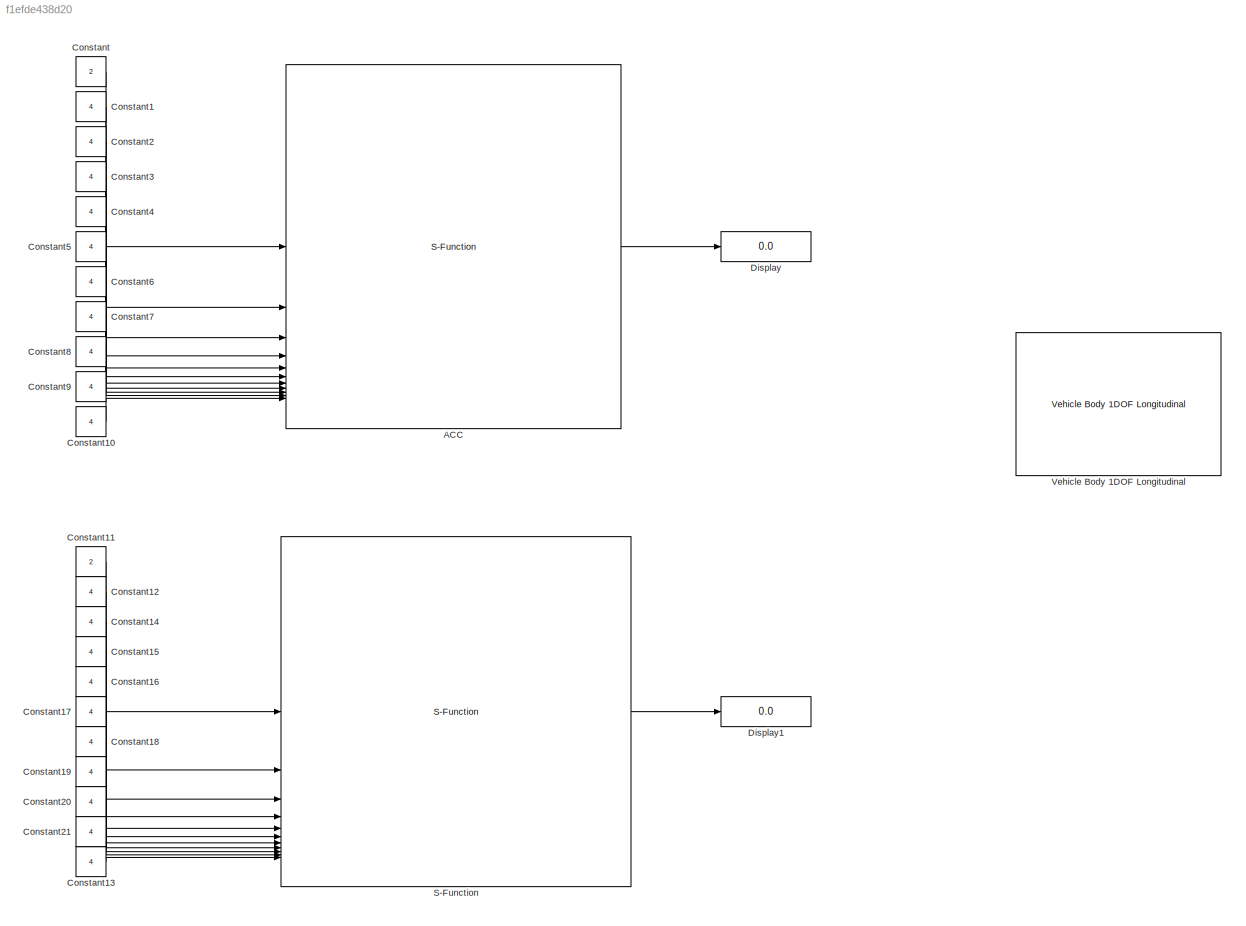
MODEL slx_f1efde438d20
KIND model
CONFIG AbsTol = auto
CONFIG EnableMultiTasking = off
CONFIG FixedStep = auto
CONFIG MaxStep = auto
CONFIG MinStep = auto
CONFIG RelTol = 1e-3
CONFIG SampleTimeConstraint = Unconstrained
CONFIG SolverName = VariableStepAuto
CONFIG StartTime = 0.0
CONFIG StopTime = 10.0
BLOCK [S-Function] ACC
  CopyFcn = set_param(gcbh,'LinkStatus','none')
  EnableBusSupport = off
  FunctionName = ACCWrapper
  OpenFcn = sfunctionwizard(gcbh)
  Parameters = 1,4,1,1,1,1,1,1,1,1,1
  SFcnIsStateOwnerBlock = off
  SFunctionDeploymentMode = off
  SFunctionModules = ACCWrapper_wrapper.cpp
BLOCK [Constant] Constant
  Value = 2
BLOCK [Constant] Constant1
  Value = 4
BLOCK [Constant] Constant10
  Value = 4
BLOCK [Constant] Constant11
  Value = 2
BLOCK [Constant] Constant12
  Value = 4
BLOCK [Constant] Constant13
  Value = 4
BLOCK [Constant] Constant14
  Value = 4
BLOCK [Constant] Constant15
  Value = 4
BLOCK [Constant] Constant16
  Value = 4
BLOCK [Constant] Constant17
  Value = 4
BLOCK [Constant] Constant18
  Value = 4
BLOCK [Constant] Constant19
  Value = 4
BLOCK [Constant] Constant2
  Value = 4
BLOCK [Constant] Constant20
  Value = 4
BLOCK [Constant] Constant21
  Value = 4
BLOCK [Constant] Constant3
  Value = 4
BLOCK [Constant] Constant4
  Value = 4
BLOCK [Constant] Constant5
  Value = 4
BLOCK [Constant] Constant6
  Value = 4
BLOCK [Constant] Constant7
  Value = 4
BLOCK [Constant] Constant8
  Value = 4
BLOCK [Constant] Constant9
  Value = 4
BLOCK [Display] Display
  Decimation = 1
BLOCK [Display] Display1
  Decimation = 1
BLOCK [S-Function] S-Function
  EnableBusSupport = off
  FunctionName = ACCWrapper
  Parameters = 1,4,1,1,1,1,1,1,1,1,1
  SFcnIsStateOwnerBlock = off
  SFunctionDeploymentMode = off
  SFunctionModules = ACCWrapper.cpp
BLOCK [Reference] Vehicle Body 1DOF Longitudinal  REF=autolibshared/Vehicle Body 1DOF Longitudinal
  LibrarySourceBlock = autolibvehdynlong/Vehicle Body 1DOF Longitudinal
  SourceBlock = autolibshared/Vehicle Body 1DOF Longitudinal
  SourceType = Vehicle Body 1DOF Longitudinal
LINE ACC:1 -> Display:1
LINE Constant10:1 -> ACC:11
LINE Constant11:1 -> S-Function:1
LINE Constant12:1 -> S-Function:2
LINE Constant13:1 -> S-Function:11
LINE Constant14:1 -> S-Function:3
LINE Constant15:1 -> S-Function:4
LINE Constant16:1 -> S-Function:5
LINE Constant17:1 -> S-Function:6
LINE Constant18:1 -> S-Function:7
LINE Constant19:1 -> S-Function:8
LINE Constant1:1 -> ACC:2
LINE Constant20:1 -> S-Function:9
LINE Constant21:1 -> S-Function:10
LINE Constant2:1 -> ACC:3
LINE Constant3:1 -> ACC:4
LINE Constant4:1 -> ACC:5
LINE Constant5:1 -> ACC:6
LINE Constant6:1 -> ACC:7
LINE Constant7:1 -> ACC:8
LINE Constant8:1 -> ACC:9
LINE Constant9:1 -> ACC:10
LINE Constant:1 -> ACC:1
LINE S-Function:1 -> Display1:1
